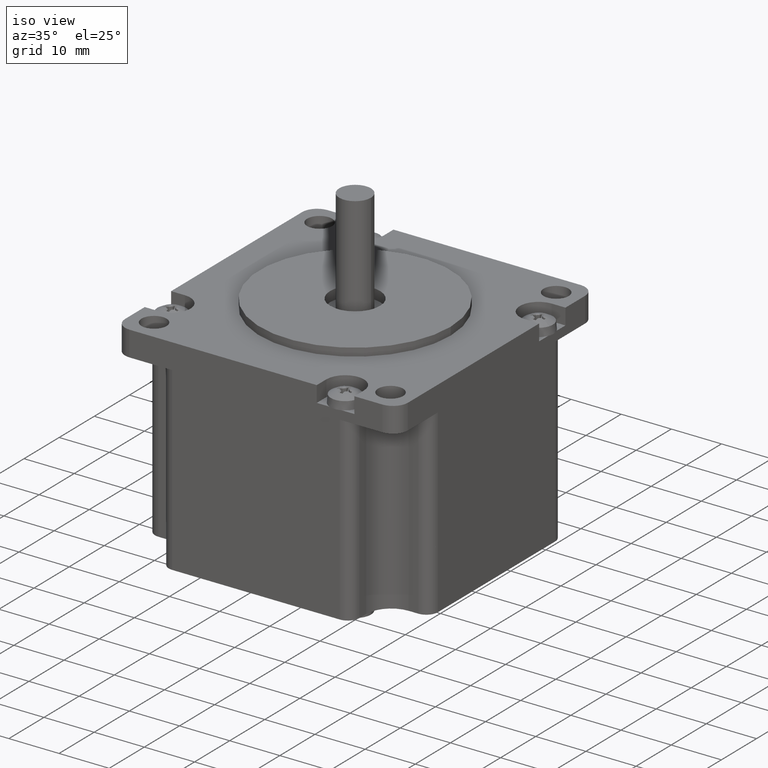
[diagram: clean part render]
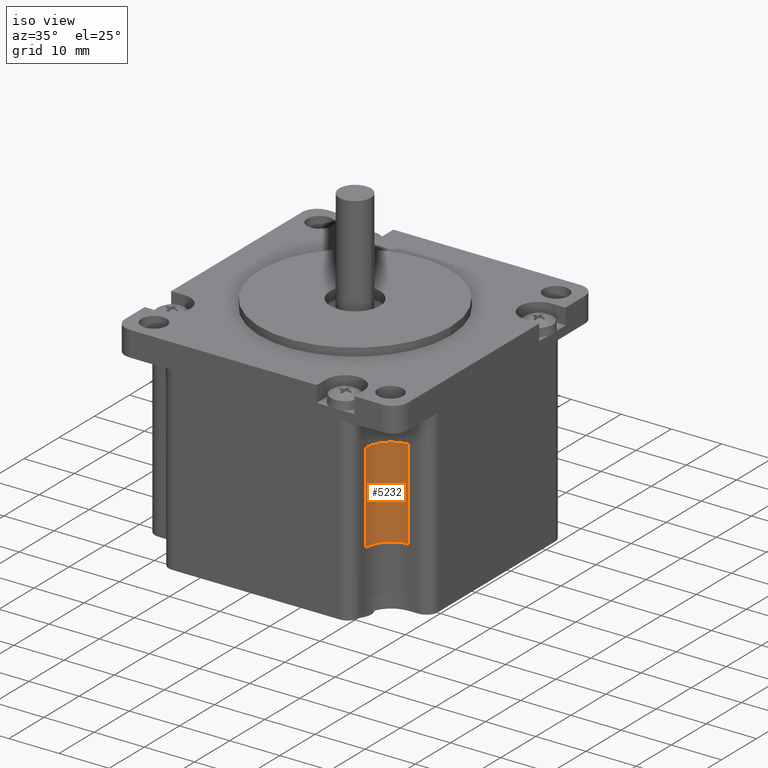
[diagram: same view with one face highlighted and labeled with its STEP entity id]
A machine part, iso view. The second image highlights one B-rep face of the part: STEP entity #5232.
In plain terms, the highlighted cylindrical surface (edge-blend (fillet) strip) has radius 5 mm, axis along (0, 0, 1).
Its self-contained STEP definition (entity closure, byte-faithful):
#312=LINE('',#8232,#678);
#317=LINE('',#8243,#683);
#678=VECTOR('',#6591,10.);
#683=VECTOR('',#6602,10.);
#1220=FACE_OUTER_BOUND('',#1570,.T.);
#1570=EDGE_LOOP('',(#3831,#3832,#3833,#3834));
#1917=CIRCLE('',#5625,5.);
#1929=CIRCLE('',#5652,5.);
#2287=VERTEX_POINT('',#8161);
#2288=VERTEX_POINT('',#8163);
#2310=VERTEX_POINT('',#8231);
#2313=VERTEX_POINT('',#8241);
#2845=EDGE_CURVE('',#2287,#2288,#1917,.T.);
#2879=EDGE_CURVE('',#2288,#2310,#312,.T.);
#2885=EDGE_CURVE('',#2287,#2313,#317,.T.);
#2886=EDGE_CURVE('',#2310,#2313,#1929,.T.);
#3831=ORIENTED_EDGE('',*,*,#2886,.F.);
#3832=ORIENTED_EDGE('',*,*,#2879,.F.);
#3833=ORIENTED_EDGE('',*,*,#2845,.F.);
#3834=ORIENTED_EDGE('',*,*,#2885,.T.);
#4967=CYLINDRICAL_SURFACE('',#5651,5.);
#5232=ADVANCED_FACE('',(#1220),#4967,.F.);
#5625=AXIS2_PLACEMENT_3D('',#8164,#6522,#6523);
#5651=AXIS2_PLACEMENT_3D('',#8244,#6603,#6604);
#5652=AXIS2_PLACEMENT_3D('',#8245,#6605,#6606);
#6522=DIRECTION('center_axis',(0.,0.,1.));
#6523=DIRECTION('ref_axis',(1.,1.83697019872103E-16,0.));
#6591=DIRECTION('',(0.,0.,1.));
#6602=DIRECTION('',(0.,0.,1.));
#6603=DIRECTION('center_axis',(0.,0.,1.));
#6604=DIRECTION('ref_axis',(1.,1.83697019872103E-16,0.));
#6605=DIRECTION('center_axis',(0.,0.,-1.));
#6606=DIRECTION('ref_axis',(1.,1.83697019872103E-16,0.));
#8161=CARTESIAN_POINT('',(24.,-19.,-24.2999999949336));
#8163=CARTESIAN_POINT('',(19.,-24.,-24.2999999949336));
#8164=CARTESIAN_POINT('Origin',(24.,-24.,-24.2999999949336));
#8231=CARTESIAN_POINT('',(19.,-24.,-6.29999999493361));
#8232=CARTESIAN_POINT('',(19.,-24.,-24.2999999949336));
#8241=CARTESIAN_POINT('',(24.,-19.,-6.29999999493361));
#8243=CARTESIAN_POINT('',(24.,-19.,-24.2999999949336));
#8244=CARTESIAN_POINT('Origin',(24.,-24.,-24.2999999949336));
#8245=CARTESIAN_POINT('Origin',(24.,-24.,-6.29999999493361));